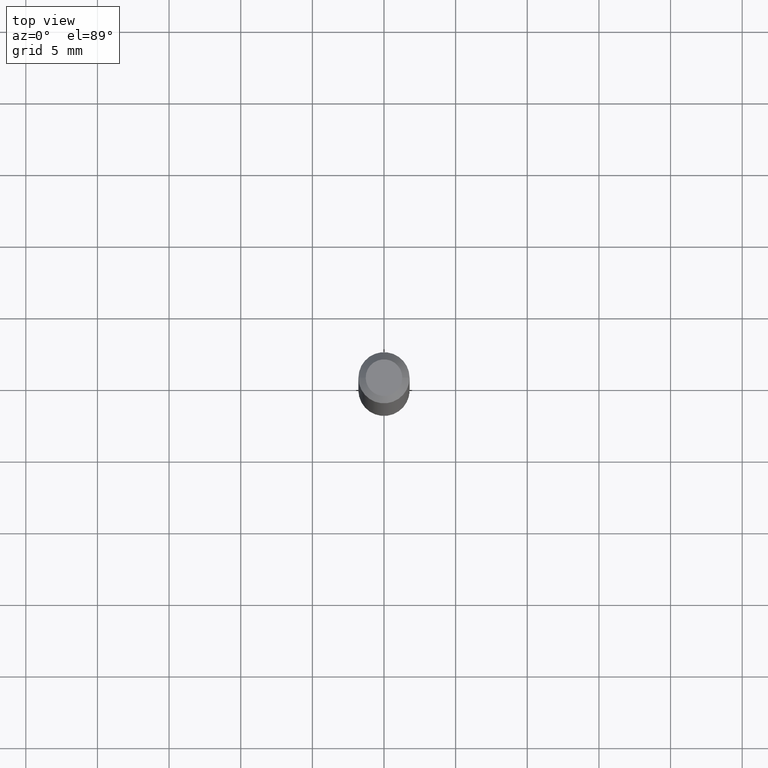
[diagram: clean part render]
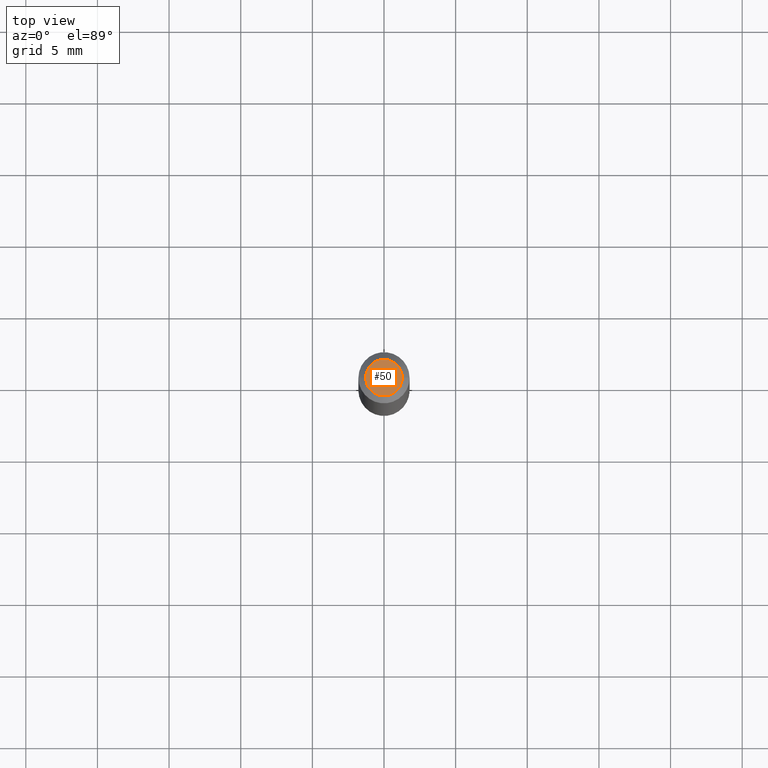
[diagram: same view with one face highlighted and labeled with its STEP entity id]
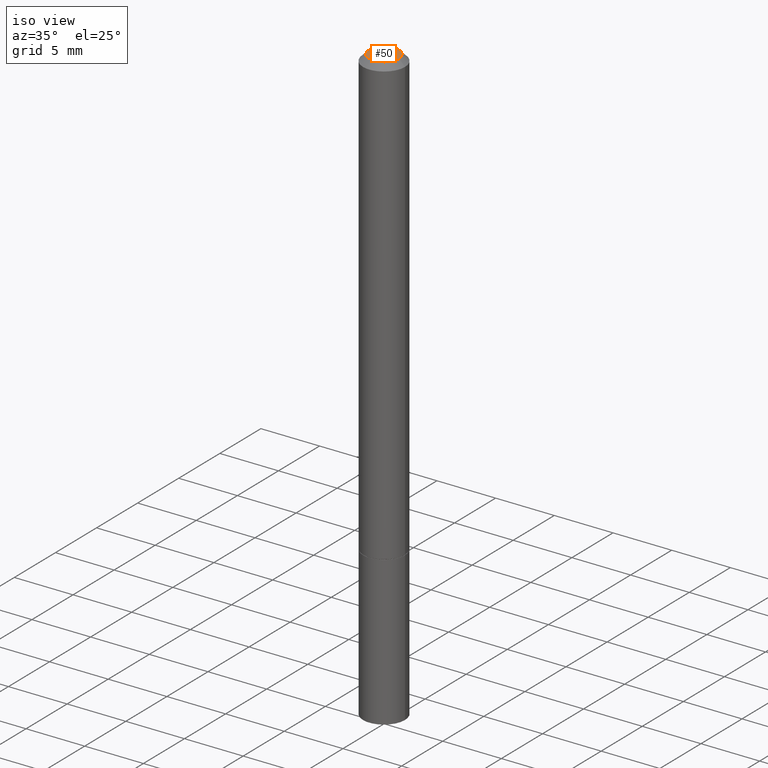
[diagram: same view with one face highlighted and labeled with its STEP entity id]
A machine part, top view. The second image highlights one B-rep face of the part: STEP entity #50.
A second angle (iso view) of the same face is appended — the face is thin or edge-on in the first view.
In plain terms, the highlighted planar face has unit normal (0, -0, -1).
Its self-contained STEP definition (entity closure, byte-faithful):
#7 = DIRECTION ( 'NONE',  ( -2.445468806185136597E-29, 3.491481338843145583E-15, 1.000000000000000000 ) ) ;
#28 = AXIS2_PLACEMENT_3D ( 'NONE', #204, #249, #36 ) ;
#36 = DIRECTION ( 'NONE',  ( 1.000000000000000000, -6.982962677686266711E-15, 4.876176775795936353E-29 ) ) ;
#39 = AXIS2_PLACEMENT_3D ( 'NONE', #390, #161, #127 ) ;
#50 = ADVANCED_FACE ( 'NONE', ( #195 ), #214, .F. ) ;
#67 = CIRCLE ( 'NONE', #178, 0.05029999999999981708 ) ;
#125 = EDGE_LOOP ( 'NONE', ( #328, #382 ) ) ;
#127 = DIRECTION ( 'NONE',  ( -1.000000000000000000, 6.982962677686265922E-15, -4.876176775795935793E-29 ) ) ;
#140 = DIRECTION ( 'NONE',  ( 1.000000000000000000, -6.982962677686266711E-15, 4.876176775795936353E-29 ) ) ;
#161 = DIRECTION ( 'NONE',  ( 2.438088387897960049E-29, -3.491481338843145188E-15, -1.000000000000000000 ) ) ;
#178 = AXIS2_PLACEMENT_3D ( 'NONE', #201, #7, #140 ) ;
#179 = CARTESIAN_POINT ( 'NONE',  ( -0.05029999999999981708, 3.861578360760490633E-16, -2.578333688018695256E-30 ) ) ;
#180 = EDGE_CURVE ( 'NONE', #350, #357, #67, .T. ) ;
#195 = FACE_OUTER_BOUND ( 'NONE', #125, .T. ) ;
#201 = CARTESIAN_POINT ( 'NONE',  ( 0.000000000000000000, 0.000000000000000000, 0.000000000000000000 ) ) ;
#204 = CARTESIAN_POINT ( 'NONE',  ( 0.000000000000000000, 0.000000000000000000, 0.000000000000000000 ) ) ;
#206 = CARTESIAN_POINT ( 'NONE',  ( 0.05029999999999981708, -4.486028426540536026E-16, 2.796359263189735848E-30 ) ) ;
#208 = CIRCLE ( 'NONE', #28, 0.05029999999999981708 ) ;
#214 = PLANE ( 'NONE',  #39 ) ;
#219 = EDGE_CURVE ( 'NONE', #357, #350, #208, .T. ) ;
#249 = DIRECTION ( 'NONE',  ( -2.445468806185136597E-29, 3.491481338843145583E-15, 1.000000000000000000 ) ) ;
#328 = ORIENTED_EDGE ( 'NONE', *, *, #180, .T. ) ;
#350 = VERTEX_POINT ( 'NONE', #179 ) ;
#357 = VERTEX_POINT ( 'NONE', #206 ) ;
#382 = ORIENTED_EDGE ( 'NONE', *, *, #219, .T. ) ;
#390 = CARTESIAN_POINT ( 'NONE',  ( 3.512430226876179072E-16, 0.05029999999999981708, -1.756215113438095946E-16 ) ) ;